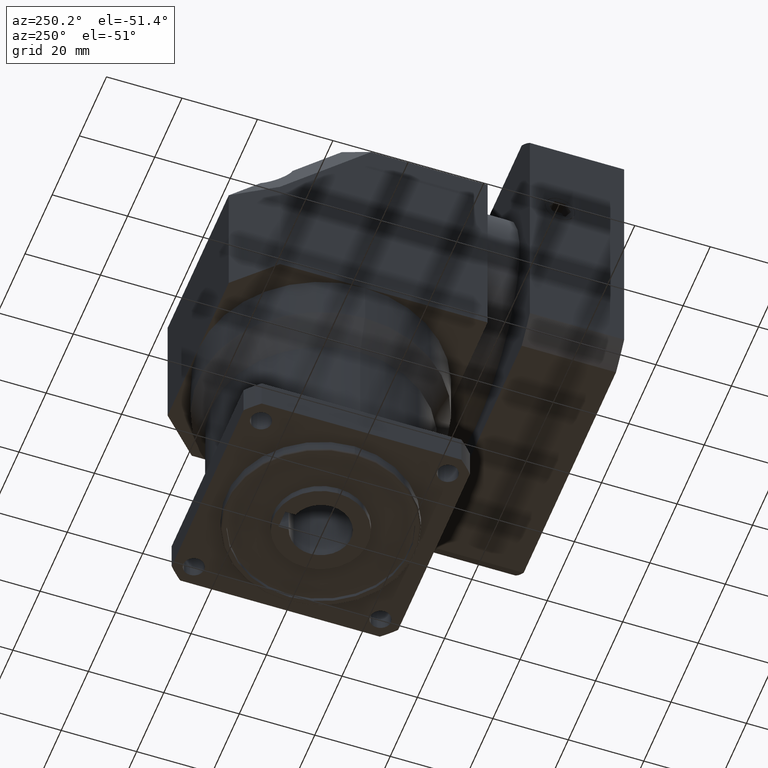
[diagram: clean part render]
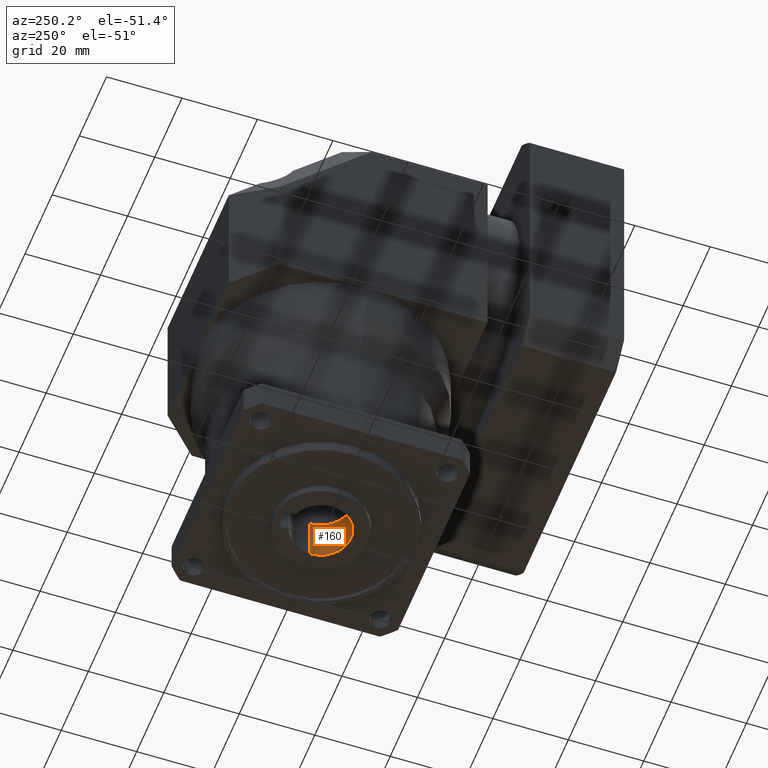
[diagram: same view with one face highlighted and labeled with its STEP entity id]
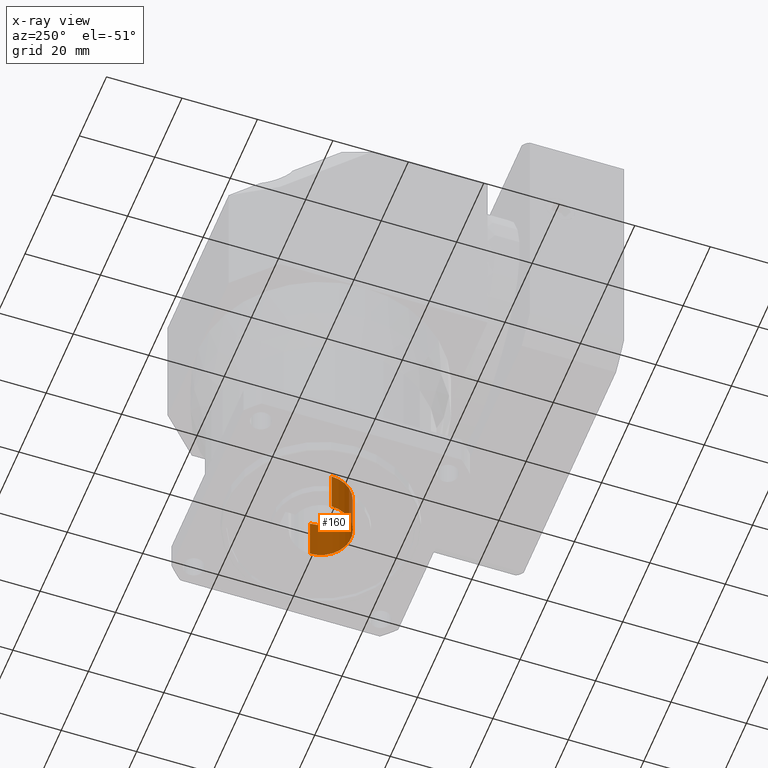
[diagram: x-ray of the same camera — body ghosted, the highlighted face saturated]
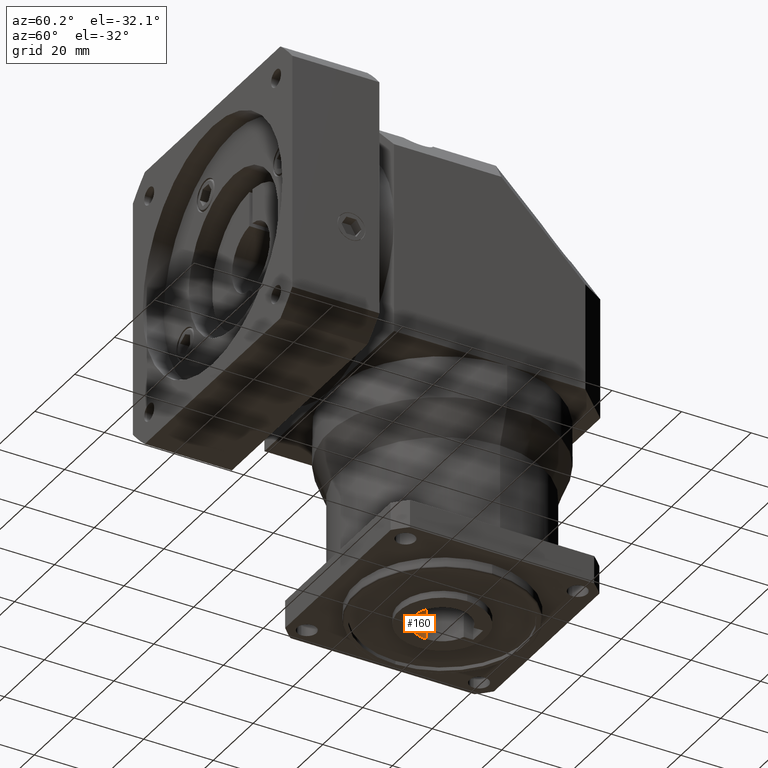
[diagram: same view with one face highlighted and labeled with its STEP entity id]
A machine part, auxiliary view. The second image highlights one B-rep face of the part: STEP entity #160.
The next image is the same camera in x-ray: the body ghosted, the highlighted face saturated — about 0% of this face is hidden behind the body in this view.
A second angle (auxiliary view) of the same face is appended — the face is thin or edge-on in the first view.
In plain terms, the highlighted cylindrical surface (edge-blend (fillet) strip) has radius 8 mm, axis along (-0, -0, -1).
Its self-contained STEP definition (entity closure, byte-faithful):
#130 = EDGE_LOOP ( 'NONE', ( #4916, #419, #3204, #3984 ) ) ;
#160 = ADVANCED_FACE ( 'NONE', ( #1507 ), #1303, .F. ) ;
#203 = CIRCLE ( 'NONE', #5933, 8.000000000000000000 ) ;
#271 = CARTESIAN_POINT ( 'NONE',  ( 0.0000000000000000000, 0.0000000000000000000, -58.50000000000000000 ) ) ;
#419 = ORIENTED_EDGE ( 'NONE', *, *, #2311, .T. ) ;
#438 = CARTESIAN_POINT ( 'NONE',  ( -8.000000000000000000, 0.0000000000000000000, -58.50000000000000000 ) ) ;
#509 = CARTESIAN_POINT ( 'NONE',  ( 8.000000000000000000, 9.797174393178825700E-016, -46.50000000000000000 ) ) ;
#853 = VERTEX_POINT ( 'NONE', #438 ) ;
#917 = CIRCLE ( 'NONE', #4141, 8.000000000000000000 ) ;
#934 = DIRECTION ( 'NONE',  ( -1.000000000000000000, 0.0000000000000000000, 0.0000000000000000000 ) ) ;
#1303 = CYLINDRICAL_SURFACE ( 'NONE', #5960, 8.000000000000000000 ) ;
#1507 = FACE_OUTER_BOUND ( 'NONE', #130, .T. ) ;
#1761 = VECTOR ( 'NONE', #5930, 1000.000000000000000 ) ;
#1863 = EDGE_CURVE ( 'NONE', #8098, #853, #2532, .T. ) ;
#2077 = DIRECTION ( 'NONE',  ( -1.000000000000000000, 0.0000000000000000000, 0.0000000000000000000 ) ) ;
#2311 = EDGE_CURVE ( 'NONE', #7097, #6966, #7064, .T. ) ;
#2445 = DIRECTION ( 'NONE',  ( -1.000000000000000000, 0.0000000000000000000, 0.0000000000000000000 ) ) ;
#2498 = EDGE_CURVE ( 'NONE', #7097, #8098, #917, .T. ) ;
#2532 = LINE ( 'NONE', #2672, #4067 ) ;
#2672 = CARTESIAN_POINT ( 'NONE',  ( -8.000000000000000000, 0.0000000000000000000, -30.50000000000000400 ) ) ;
#3204 = ORIENTED_EDGE ( 'NONE', *, *, #6408, .T. ) ;
#3984 = ORIENTED_EDGE ( 'NONE', *, *, #1863, .F. ) ;
#4067 = VECTOR ( 'NONE', #6124, 1000.000000000000000 ) ;
#4141 = AXIS2_PLACEMENT_3D ( 'NONE', #4277, #6747, #2445 ) ;
#4277 = CARTESIAN_POINT ( 'NONE',  ( 0.0000000000000000000, 0.0000000000000000000, -46.50000000000000000 ) ) ;
#4897 = DIRECTION ( 'NONE',  ( 0.0000000000000000000, 0.0000000000000000000, -1.000000000000000000 ) ) ;
#4916 = ORIENTED_EDGE ( 'NONE', *, *, #2498, .F. ) ;
#5271 = CARTESIAN_POINT ( 'NONE',  ( -8.000000000000000000, 0.0000000000000000000, -46.50000000000000000 ) ) ;
#5433 = DIRECTION ( 'NONE',  ( -0.0000000000000000000, -0.0000000000000000000, -1.000000000000000000 ) ) ;
#5930 = DIRECTION ( 'NONE',  ( -0.0000000000000000000, -0.0000000000000000000, -1.000000000000000000 ) ) ;
#5933 = AXIS2_PLACEMENT_3D ( 'NONE', #271, #4897, #934 ) ;
#5960 = AXIS2_PLACEMENT_3D ( 'NONE', #6294, #5433, #2077 ) ;
#6124 = DIRECTION ( 'NONE',  ( -0.0000000000000000000, -0.0000000000000000000, -1.000000000000000000 ) ) ;
#6294 = CARTESIAN_POINT ( 'NONE',  ( 0.0000000000000000000, 0.0000000000000000000, -30.50000000000000400 ) ) ;
#6408 = EDGE_CURVE ( 'NONE', #6966, #853, #203, .T. ) ;
#6747 = DIRECTION ( 'NONE',  ( 0.0000000000000000000, 0.0000000000000000000, -1.000000000000000000 ) ) ;
#6966 = VERTEX_POINT ( 'NONE', #7640 ) ;
#7064 = LINE ( 'NONE', #7683, #1761 ) ;
#7097 = VERTEX_POINT ( 'NONE', #509 ) ;
#7640 = CARTESIAN_POINT ( 'NONE',  ( 8.000000000000000000, 9.797174393178825700E-016, -58.50000000000000000 ) ) ;
#7683 = CARTESIAN_POINT ( 'NONE',  ( 8.000000000000000000, 9.797174393178825700E-016, -30.50000000000000400 ) ) ;
#8098 = VERTEX_POINT ( 'NONE', #5271 ) ;